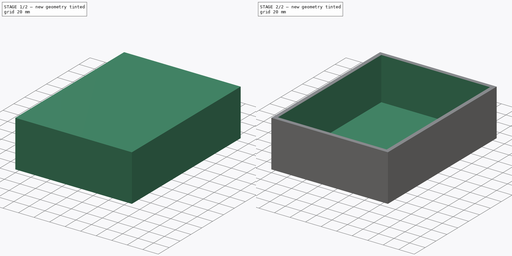
[diagram: build sequence overview — one tinted view per stage of 2, left to right]
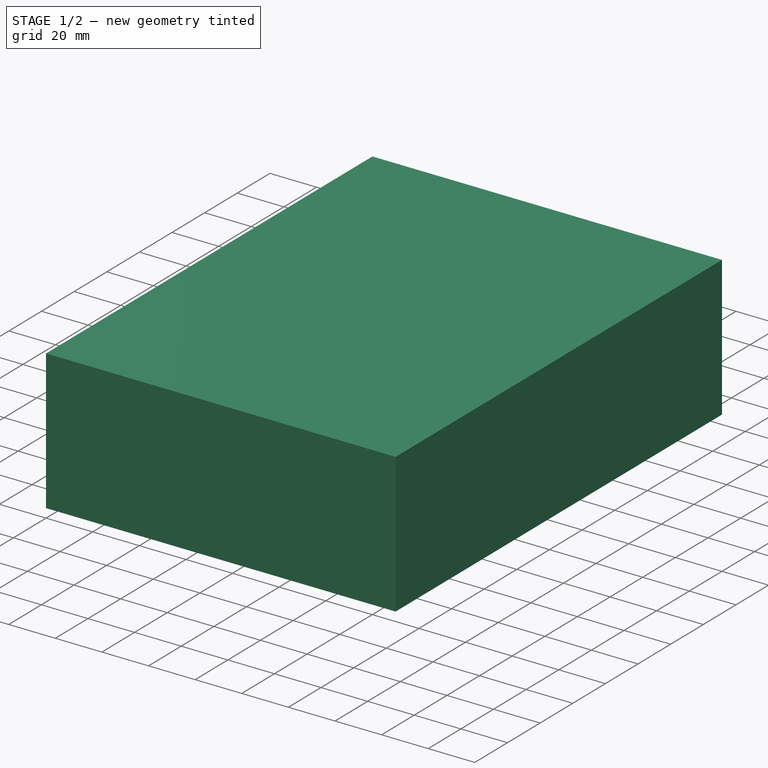
[diagram: stage 1 of 2 — iso view after this stage's code; geometry added in this stage tinted green]
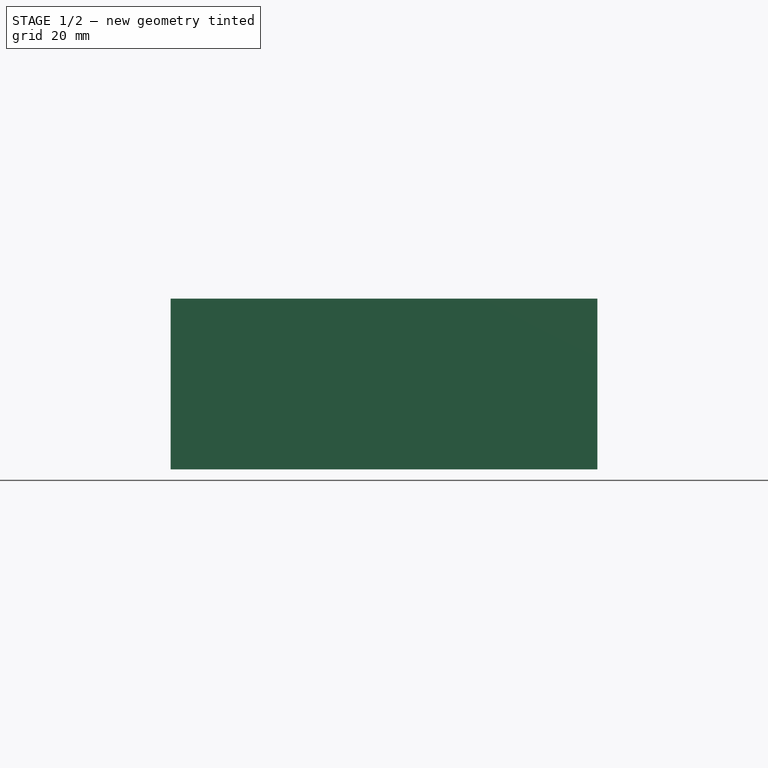
[diagram: stage 1 of 2 — front view after this stage's code; geometry added in this stage tinted green]
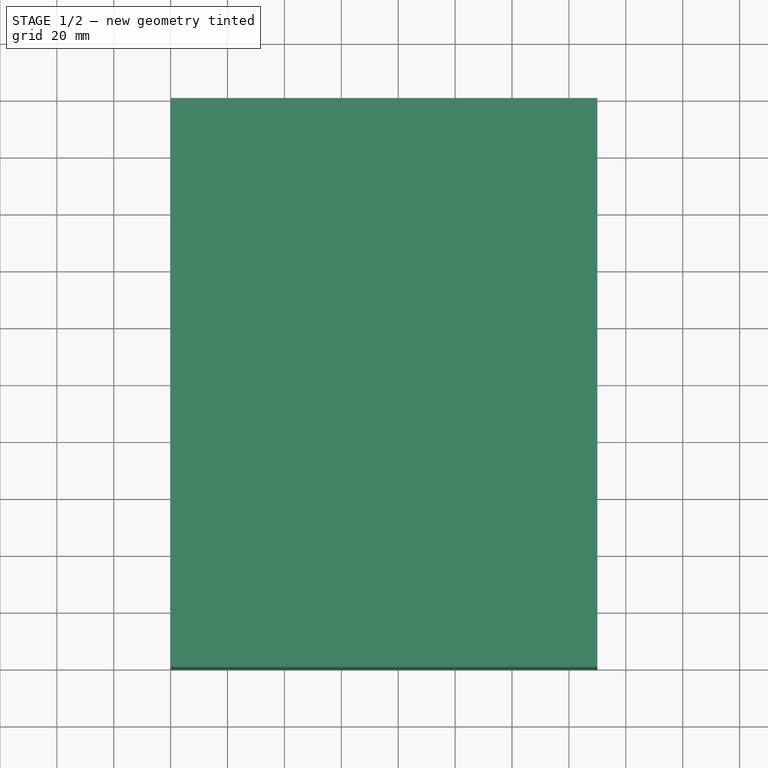
[diagram: stage 1 of 2 — top view after this stage's code; geometry added in this stage tinted green]
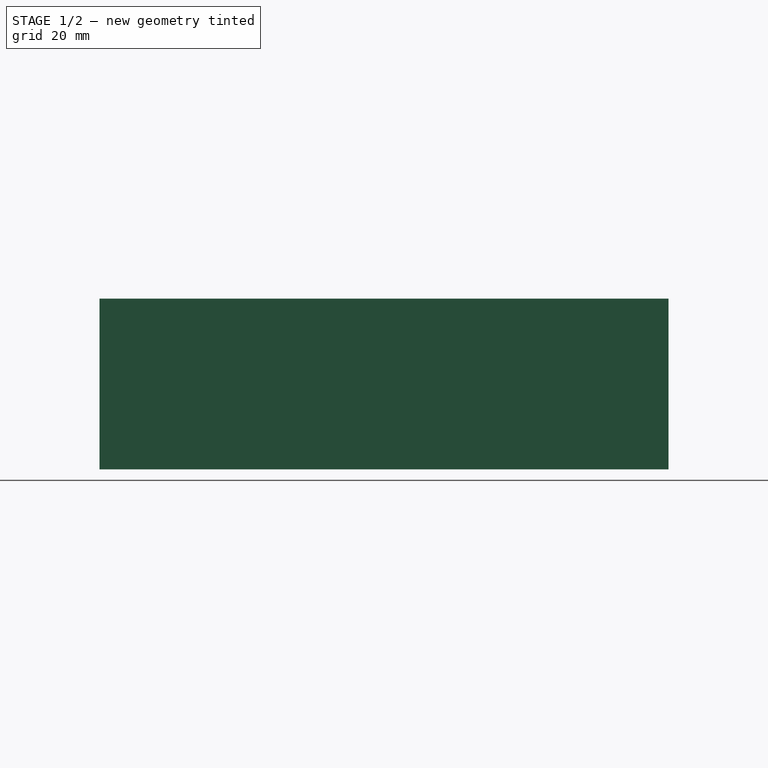
[diagram: stage 1 of 2 — right view after this stage's code; geometry added in this stage tinted green]
FCSTD DOCUMENT  (FreeCAD 0.19R24267 +99 (Git))
Label: boitier
License: All rights reserved
LicenseURL: http://en.wikipedia.org/wiki/All_rights_reserved
objects: Sketcher::SketchObject×3, Part::Extrusion×1, PartDesign::FeatureBase×1, PartDesign::Pocket×1, PartDesign::Body×1
note: 8 computed .brp shape members not serialized (recipe doc carries the construction recipe); baked Part::Feature solids carry a one-line shape summary decoded from their .brp

FEATURE [Sketcher::SketchObject] Sketch
  FullyConstrained = true
  sketch-geometry (4):
    g0: LineSegment StartX=0 StartY=0 StartZ=0 EndX=150 EndY=0 EndZ=0
    g1: LineSegment StartX=150 StartY=0 StartZ=0 EndX=150 EndY=200 EndZ=0
    g2: LineSegment StartX=150 StartY=200 StartZ=0 EndX=0 EndY=200 EndZ=0
    g3: LineSegment StartX=0 StartY=200 StartZ=0 EndX=0 EndY=0 EndZ=0
  constraints (11):
    c: Coincident(g0,g1)
    c: Coincident(g1,g2)
    c: Coincident(g2,g3)
    c: Coincident(g3,g0)
    c: Horizontal(g0)
    c: Horizontal(g2)
    c: Vertical(g1)
    c: Vertical(g3)
    c: Coincident(g0,g-1)
    c: DistanceX(g0,g0) = 150
    c: DistanceY(g1,g1) = 200
FEATURE [Part::Extrusion] Extrude
  Base = -> Sketch
  Dir = (0,0,1)
  DirMode = 2
  FaceMakerClass = Part::FaceMakerBullseye
  LengthFwd = 60
  LengthRev = 0
  Solid = true
  Symmetric = false
FEATURE [PartDesign::FeatureBase] BaseFeature
  BaseFeature = -> Extrude
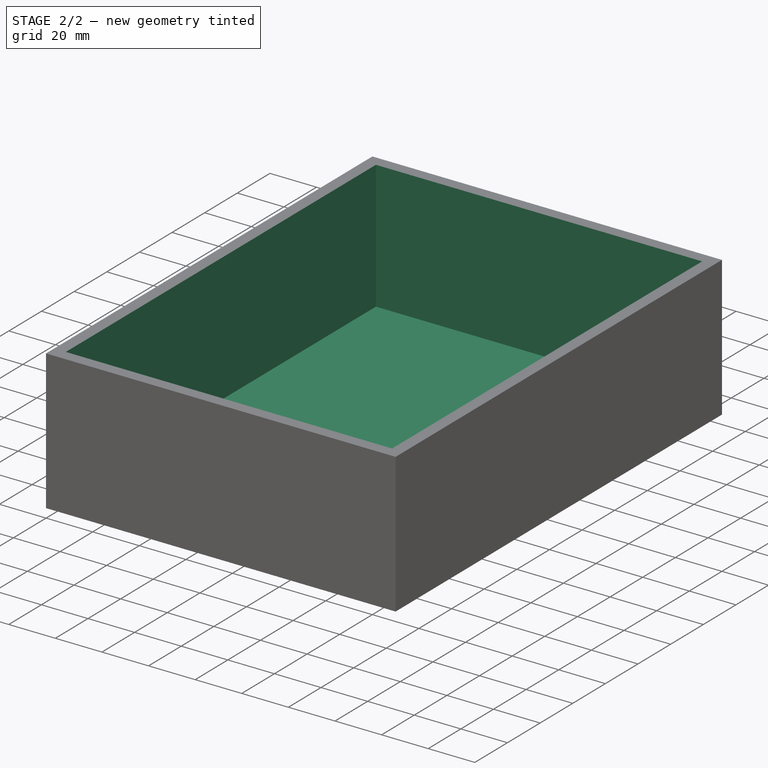
[diagram: stage 2 of 2 — iso view after this stage's code; geometry added in this stage tinted green]
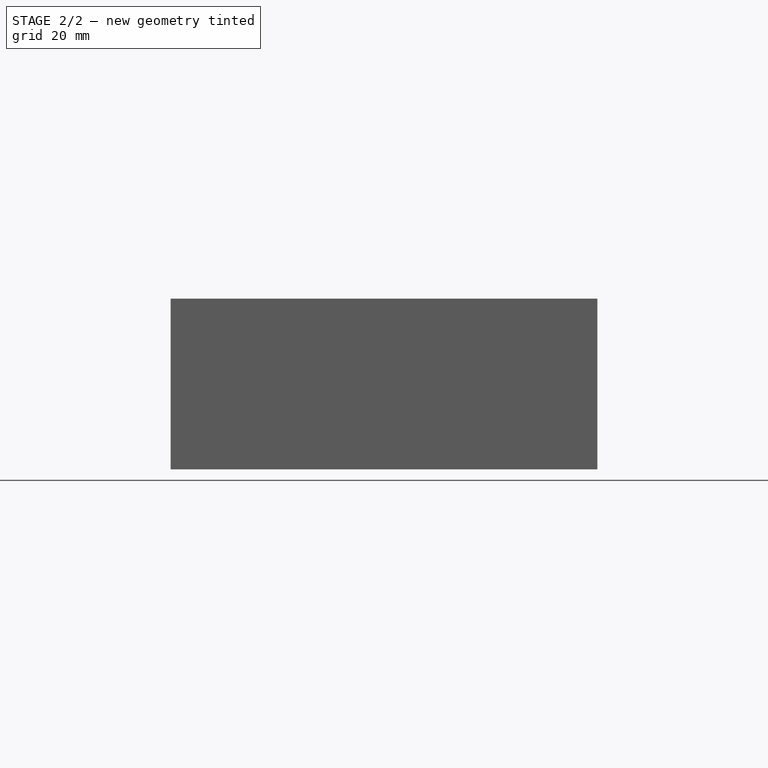
[diagram: stage 2 of 2 — front view after this stage's code; geometry added in this stage tinted green]
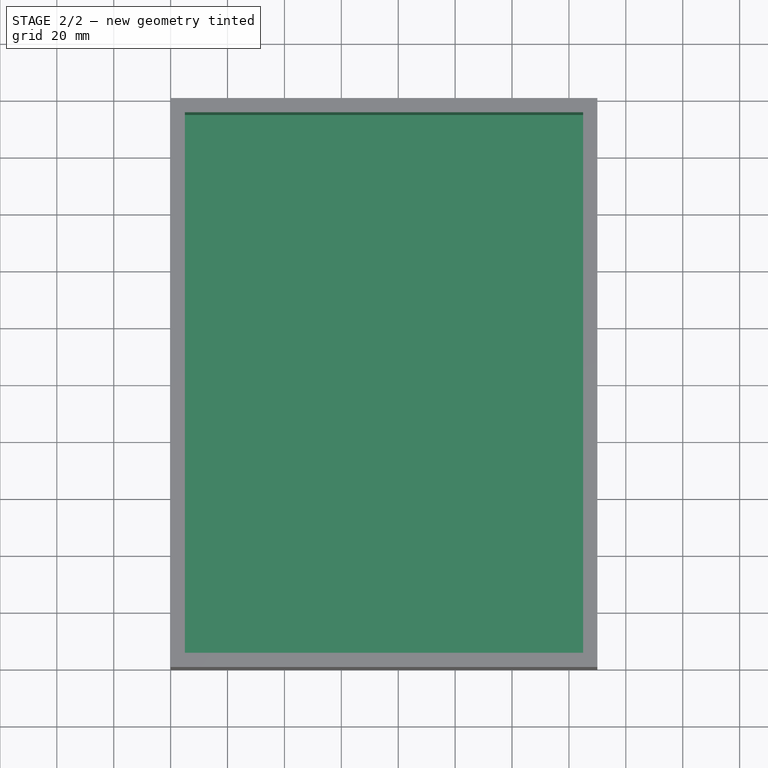
[diagram: stage 2 of 2 — top view after this stage's code; geometry added in this stage tinted green]
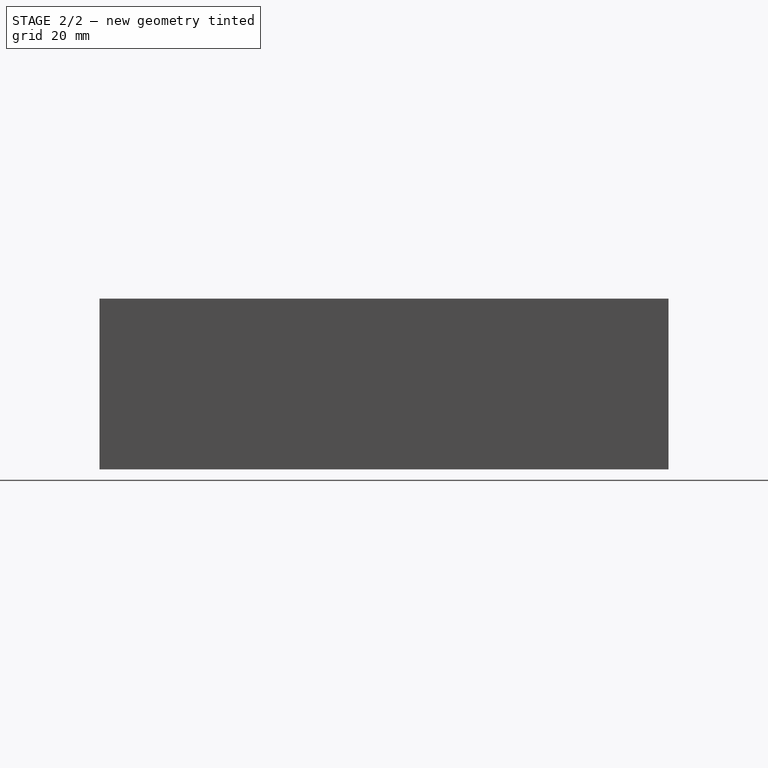
[diagram: stage 2 of 2 — right view after this stage's code; geometry added in this stage tinted green]
FEATURE [Sketcher::SketchObject] Sketch001
  FullyConstrained = true
  MapMode = 5
  Placement = pos=(0,0,60) rot=(0,0,1;0rad)
  Support = -> [BaseFeature]
  sketch-geometry (20):
    g0: LineSegment StartX=0 StartY=0 StartZ=0 EndX=150 EndY=0 EndZ=0
    g1: LineSegment StartX=150 StartY=0 StartZ=0 EndX=150 EndY=200 EndZ=0
    g2: LineSegment StartX=150 StartY=200 StartZ=0 EndX=0 EndY=200 EndZ=0
    g3: LineSegment StartX=0 StartY=200 StartZ=0 EndX=0 EndY=0 EndZ=0
    g4: LineSegment StartX=5 StartY=5 StartZ=0 EndX=145 EndY=5 EndZ=0
    g5: LineSegment StartX=145 StartY=5 StartZ=0 EndX=145 EndY=195 EndZ=0
    g6: LineSegment StartX=145 StartY=195 StartZ=0 EndX=5 EndY=195 EndZ=0
    g7: LineSegment StartX=5 StartY=195 StartZ=0 EndX=5 EndY=5 EndZ=0
    g8: LineSegment StartX=5 StartY=5 StartZ=0 EndX=0 EndY=5 EndZ=0
    g9: LineSegment StartX=0 StartY=5 StartZ=0 EndX=0 EndY=0 EndZ=0
    g10: LineSegment StartX=0 StartY=0 StartZ=0 EndX=5 EndY=0 EndZ=0
    g11: LineSegment StartX=5 StartY=0 StartZ=0 EndX=5 EndY=5 EndZ=0
    g12: LineSegment StartX=145 StartY=195 StartZ=0 EndX=150 EndY=195 EndZ=0
    g13: LineSegment StartX=150 StartY=195 StartZ=0 EndX=150 EndY=200 EndZ=0
    g14: LineSegment StartX=150 StartY=200 StartZ=0 EndX=145 EndY=200 EndZ=0
    g15: LineSegment StartX=145 StartY=200 StartZ=0 EndX=145 EndY=195 EndZ=0
    g16: LineSegment StartX=0 StartY=200 StartZ=0 EndX=5 EndY=200 EndZ=0
    g17: LineSegment StartX=5 StartY=200 StartZ=0 EndX=5 EndY=195 EndZ=0
    g18: LineSegment StartX=5 StartY=195 StartZ=0 EndX=0 EndY=195 EndZ=0
    g19: LineSegment StartX=0 StartY=195 StartZ=0 EndX=0 EndY=200 EndZ=0
  constraints (53):
    c: Coincident(g0,g1)
    c: Coincident(g1,g2)
    c: Coincident(g2,g3)
    c: Coincident(g3,g0)
    c: Horizontal(g0)
    c: Horizontal(g2)
    c: Vertical(g1)
    c: Vertical(g3)
    c: Coincident(g0,g-1)
    c: DistanceX(g0,g0) = 150
    c: DistanceY(g1,g1) = 200
    c: Coincident(g4,g5)
    c: Coincident(g5,g6)
    c: Coincident(g6,g7)
    c: Coincident(g7,g4)
    c: Horizontal(g4)
    c: Horizontal(g6)
    c: Vertical(g5)
    c: Vertical(g7)
    c: Coincident(g8,g9)
    c: Coincident(g9,g10)
    c: Coincident(g10,g11)
    c: Coincident(g11,g8)
    c: Horizontal(g8)
    c: Horizontal(g10)
    c: Vertical(g9)
    c: Vertical(g11)
    c: Coincident(g8,g4)
    c: Coincident(g9,g0)
    c: DistanceX(g8,g8) = 5
    c: DistanceY(g11,g11) = 5
    c: Coincident(g12,g13)
    c: Coincident(g13,g14)
    c: Coincident(g14,g15)
    c: Coincident(g15,g12)
    c: Horizontal(g12)
    c: Horizontal(g14)
    c: Vertical(g13)
    c: Vertical(g15)
    c: Coincident(g12,g5)
    c: Coincident(g13,g1)
    c: Coincident(g16,g17)
    c: Coincident(g17,g18)
    c: Coincident(g18,g19)
    c: Coincident(g19,g16)
    c: Horizontal(g16)
    c: Horizontal(g18)
    c: Vertical(g17)
    c: Vertical(g19)
    c: Coincident(g16,g2)
    c: Coincident(g17,g6)
    c: Distance(g17) = 5
    c: Distance(g12) = 5
FEATURE [PartDesign::Pocket] Pocket
  BaseFeature = -> BaseFeature
  Length = 55
  Length2 = 100
  Profile = -> Sketch001
  Type = 0
FEATURE [Sketcher::SketchObject] Sketch002
  FullyConstrained = true
  MapMode = 5
  Placement = pos=(0,0,5) rot=(0,0,1;0rad)
  Support = -> [Pocket]
  sketch-geometry (26):
    g0: LineSegment StartX=0 StartY=0 StartZ=0 EndX=150 EndY=0 EndZ=0
    g1: LineSegment StartX=150 StartY=0 StartZ=0 EndX=150 EndY=200 EndZ=0
    g2: LineSegment StartX=150 StartY=200 StartZ=0 EndX=0 EndY=200 EndZ=0
    g3: LineSegment StartX=0 StartY=200 StartZ=0 EndX=0 EndY=0 EndZ=0
    g4: LineSegment StartX=0 StartY=0 StartZ=0 EndX=5 EndY=0 EndZ=0
    g5: LineSegment StartX=5 StartY=0 StartZ=0 EndX=5 EndY=5 EndZ=0
    g6: LineSegment StartX=5 StartY=5 StartZ=0 EndX=0 EndY=5 EndZ=0
    g7: LineSegment StartX=0 StartY=5 StartZ=0 EndX=0 EndY=0 EndZ=0
    g8: LineSegment StartX=145 StartY=195 StartZ=0 EndX=5 EndY=195 EndZ=0
    g9: LineSegment StartX=61 StartY=5 StartZ=0 EndX=61 EndY=90 EndZ=0
    g10: LineSegment StartX=61 StartY=90 StartZ=0 EndX=5 EndY=90 EndZ=0
    g11: LineSegment StartX=5 StartY=195 StartZ=0 EndX=5 EndY=90 EndZ=0
    g12: LineSegment StartX=5 StartY=90 StartZ=0 EndX=5 EndY=5 EndZ=0
    g13: LineSegment StartX=5 StartY=5 StartZ=0 EndX=61 EndY=5 EndZ=0
    g14: LineSegment StartX=61 StartY=5 StartZ=0 EndX=145 EndY=5 EndZ=0
    g15: LineSegment StartX=8.5 StartY=90 StartZ=0 EndX=8.5 EndY=86.5 EndZ=0
    g16: LineSegment StartX=8.5 StartY=86.5 StartZ=0 EndX=5 EndY=86.5 EndZ=0
    g17: Circle CenterX=8.5 CenterY=86.5 CenterZ=0 NormalX=0 NormalY=0 NormalZ=1 AngleXU=0 Radius=1.35
    g18: LineSegment StartX=8.5 StartY=86.5 StartZ=0 EndX=57.5 EndY=86.5 EndZ=0
    g19: Circle CenterX=57.5 CenterY=86.5 CenterZ=0 NormalX=0 NormalY=0 NormalZ=1 AngleXU=0 Radius=1.35
    g20: LineSegment StartX=57.5 StartY=86.5 StartZ=0 EndX=57.5 EndY=90 EndZ=0
    g21: LineSegment StartX=145 StartY=195 StartZ=0 EndX=150 EndY=195 EndZ=0
    g22: LineSegment StartX=145 StartY=195 StartZ=0 EndX=145 EndY=200 EndZ=0
    g23: LineSegment StartX=5 StartY=195 StartZ=0 EndX=0 EndY=195 EndZ=0
    g24: LineSegment StartX=5 StartY=195 StartZ=0 EndX=5 EndY=200 EndZ=0
    g25: LineSegment StartX=145 StartY=5 StartZ=0 EndX=145 EndY=195 EndZ=0
  constraints (75):
    c: Coincident(g0,g1)
    c: Coincident(g1,g2)
    c: Coincident(g2,g3)
    c: Coincident(g3,g0)
    c: Horizontal(g0)
    c: Horizontal(g2)
    c: Vertical(g1)
    c: Vertical(g3)
    c: Coincident(g0,g-1)
    c: Distance(g1) = 200
    c: Distance(g0) = 150
    c: Coincident(g4,g5)
    c: Coincident(g5,g6)
    c: Coincident(g6,g7)
    c: Coincident(g7,g4)
    c: Horizontal(g4)
    c: Horizontal(g6)
    c: Vertical(g5)
    c: Vertical(g7)
    c: Coincident(g4,g0)
    c: Distance(g5) = 5
    c: Distance(g6) = 5
    c: Horizontal(g8)
    c: Vertical(g9)
    c: Coincident(g10,g9)
    c: Horizontal(g10)
    c: DistanceX(g10,g10) = 56
    c: DistanceY(g9,g9) = 85
    c: Coincident(g11,g10)
    c: Vertical(g11)
    c: Coincident(g12,g10)
    c: Coincident(g12,g5)
    c: Vertical(g12)
    c: Coincident(g13,g12)
    c: Coincident(g13,g9)
    c: Horizontal(g13)
    c: Coincident(g14,g9)
    c: Horizontal(g14)
    c: DistanceX(g8,g8) = 140
    c: PointOnObject(g15,g10)
    c: Vertical(g15)
    c: Coincident(g16,g15)
    c: PointOnObject(g16,g12)
    c: Horizontal(g16)
    c: DistanceX(g16,g16) = 3.5
    c: DistanceY(g15,g15) = 3.5
    c: Coincident(g17,g15)
    c: Radius(g17) = 1.35
    c: Coincident(g18,g15)
    c: Horizontal(g18)
    c: DistanceX(g18,g18) = 49
    c: Coincident(g19,g18)
    c: Radius(g19) = 1.35
    c: Coincident(g20,g18)
    c: PointOnObject(g20,g10)
    c: Vertical(g20)
    c: PointOnObject(g21,g1)
    c: Horizontal(g21)
    c: Coincident(g22,g21)
    c: PointOnObject(g22,g2)
    c: Vertical(g22)
    c: Distance(g21) = 5
    c: Distance(g22) = 5
    c: Coincident(g23,g8)
    c: PointOnObject(g23,g3)
    c: Horizontal(g23)
    c: Coincident(g24,g23)
    c: PointOnObject(g24,g2)
    c: Vertical(g24)
    c: Distance(g24) = 5
    c: Distance(g23) = 5
    c: Coincident(g25,g14)
    c: Coincident(g25,g21)
    c: Vertical(g25)
    c: DistanceY(g11) = 195
FEATURE [PartDesign::Body] Body
  BaseFeature = -> Extrude
  Group = -> [BaseFeature,Sketch001,Pocket,Sketch002]
  Origin = -> Origin
  Tip = -> Pocket
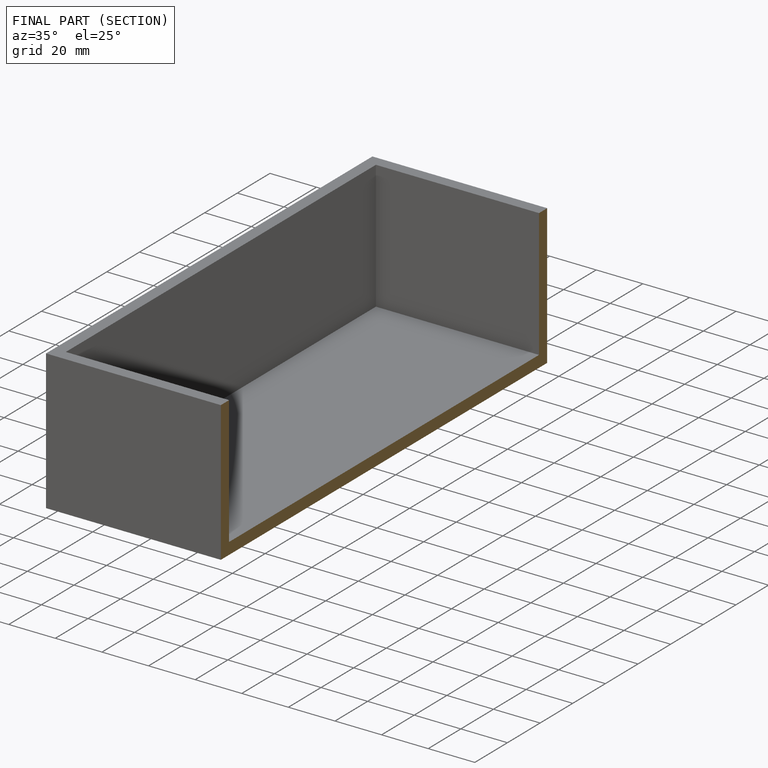
[diagram: finished part — half-section view (interior)]
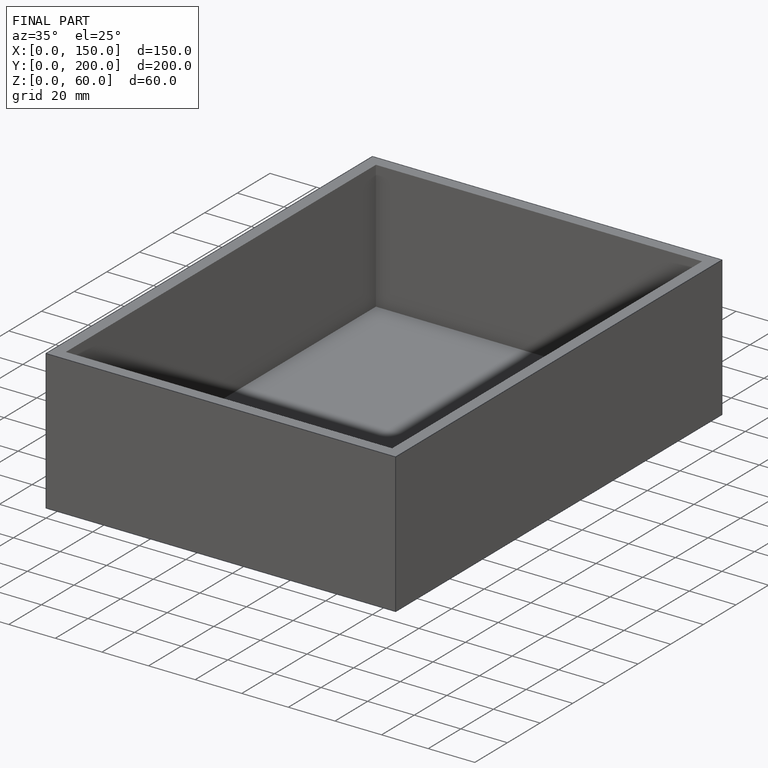
[diagram: finished part — iso view with bounding-box wireframe]
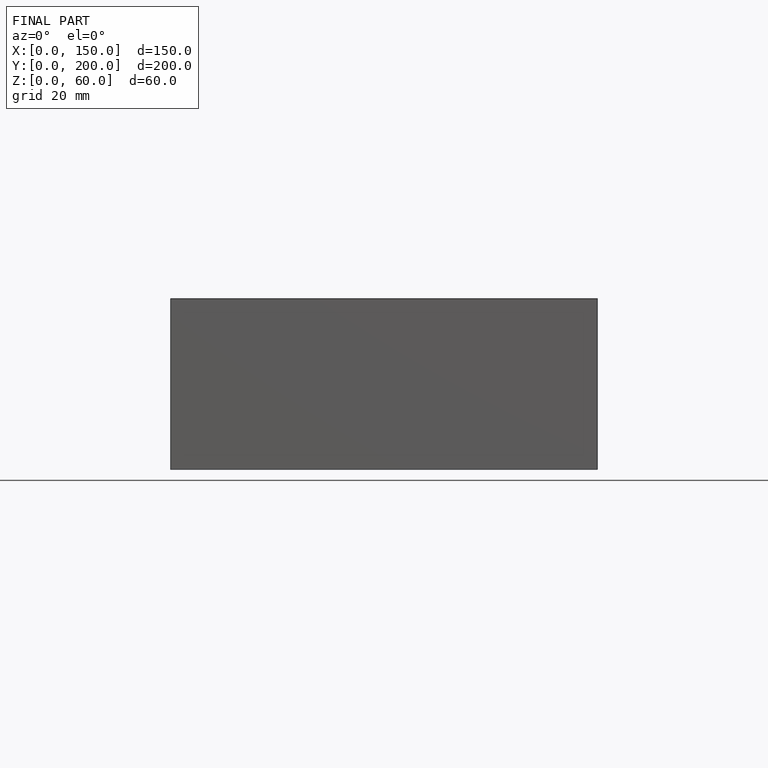
[diagram: finished part — front view with bounding-box wireframe]
